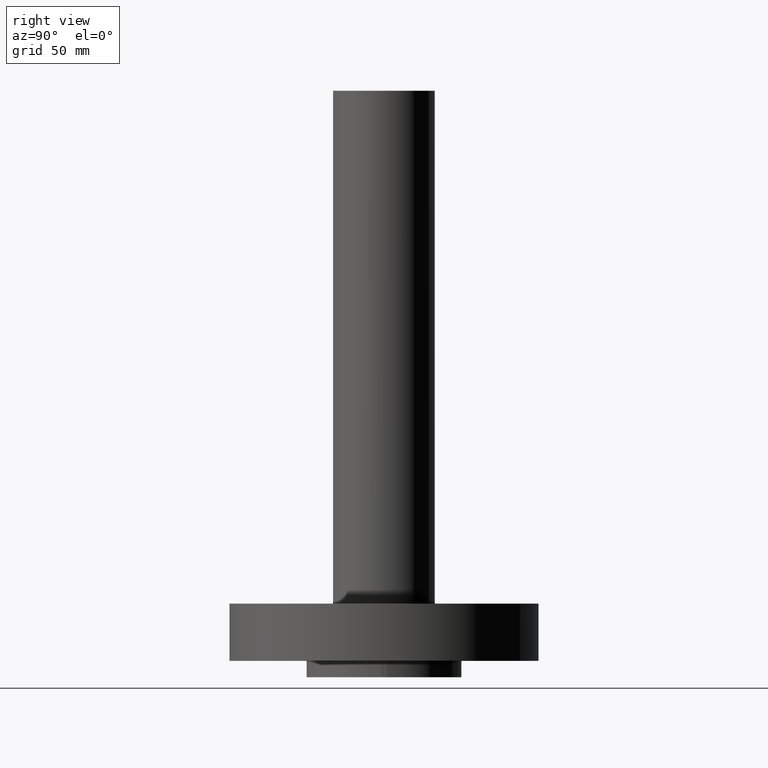
[diagram: clean part render]
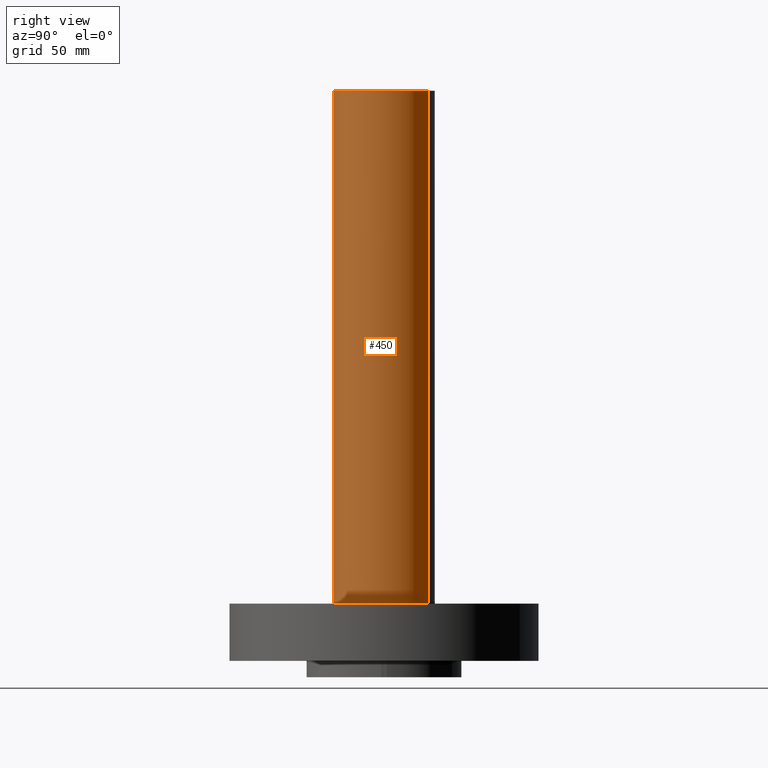
[diagram: same view with one face highlighted and labeled with its STEP entity id]
A machine part, right view. The second image highlights one B-rep face of the part: STEP entity #450.
In plain terms, the highlighted cylindrical surface (partial cylindrical patch) has radius 19.812 mm, axis along (0, 0, -1).
Its self-contained STEP definition (entity closure, byte-faithful):
#414=AXIS2_PLACEMENT_3D('Cylinder Axis2P3D',#411,#412,#413) ;
#418=AXIS2_PLACEMENT_3D('Circle Axis2P3D',#416,#417,$) ;
#434=AXIS2_PLACEMENT_3D('Circle Axis2P3D',#432,#433,$) ;
#411=CARTESIAN_POINT('Axis2P3D Location',(0.,0.,4.25000000002)) ;
#416=CARTESIAN_POINT('Axis2P3D Location',(0.,0.,0.880000000004)) ;
#420=CARTESIAN_POINT('Vertex',(0.373951920113,0.684514398277,0.880000000004)) ;
#422=CARTESIAN_POINT('Vertex',(-0.373951920113,-0.684514398277,0.880000000004)) ;
#425=CARTESIAN_POINT('Line Origine',(0.373951920113,0.684514398277,4.81500000002)) ;
#429=CARTESIAN_POINT('Vertex',(0.373951920113,0.684514398277,8.75000000003)) ;
#432=CARTESIAN_POINT('Axis2P3D Location',(0.,0.,8.75000000004)) ;
#436=CARTESIAN_POINT('Vertex',(-0.373951920113,-0.684514398277,8.75000000003)) ;
#439=CARTESIAN_POINT('Line Origine',(-0.373951920113,-0.684514398277,4.81500000002)) ;
#412=DIRECTION('Axis2P3D Direction',(0.,0.,-0.0393700787402)) ;
#413=DIRECTION('Axis2P3D XDirection',(-0.0188750212049,-0.0345504945626,0.)) ;
#417=DIRECTION('Axis2P3D Direction',(0.,0.,-0.0393700787402)) ;
#426=DIRECTION('Vector Direction',(0.,0.,-0.0393700787402)) ;
#433=DIRECTION('Axis2P3D Direction',(0.,0.,-0.0393700787402)) ;
#440=DIRECTION('Vector Direction',(0.,0.,-0.0393700787402)) ;
#427=VECTOR('Line Direction',#426,0.0393700787402) ;
#441=VECTOR('Line Direction',#440,0.0393700787402) ;
#445=ORIENTED_EDGE('',*,*,#424,.F.) ;
#446=ORIENTED_EDGE('',*,*,#431,.T.) ;
#447=ORIENTED_EDGE('',*,*,#438,.T.) ;
#448=ORIENTED_EDGE('',*,*,#443,.F.) ;
#450=ADVANCED_FACE('PartBody',(#449),#415,.T.) ;
#419=CIRCLE('generated circle',#418,0.780000000003) ;
#435=CIRCLE('generated circle',#434,0.780000000003) ;
#415=CYLINDRICAL_SURFACE('generated cylinder',#414,0.780000000003) ;
#424=EDGE_CURVE('',#421,#423,#419,.T.) ;
#431=EDGE_CURVE('',#421,#430,#428,.F.) ;
#438=EDGE_CURVE('',#430,#437,#435,.T.) ;
#443=EDGE_CURVE('',#423,#437,#442,.F.) ;
#444=EDGE_LOOP('',(#445,#446,#447,#448)) ;
#449=FACE_OUTER_BOUND('',#444,.T.) ;
#428=LINE('Line',#425,#427) ;
#442=LINE('Line',#439,#441) ;
#421=VERTEX_POINT('',#420) ;
#423=VERTEX_POINT('',#422) ;
#430=VERTEX_POINT('',#429) ;
#437=VERTEX_POINT('',#436) ;